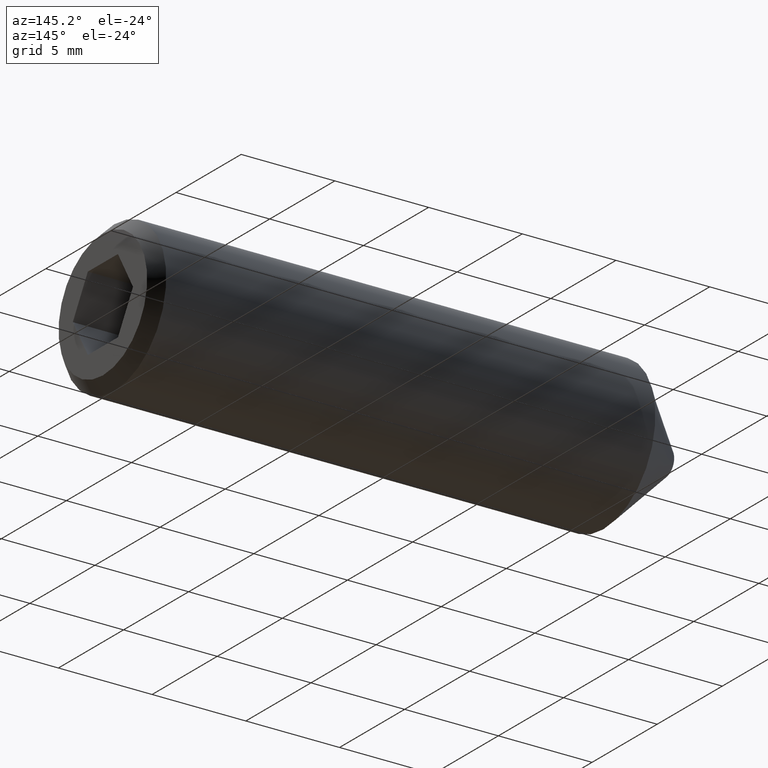
[diagram: clean part render]
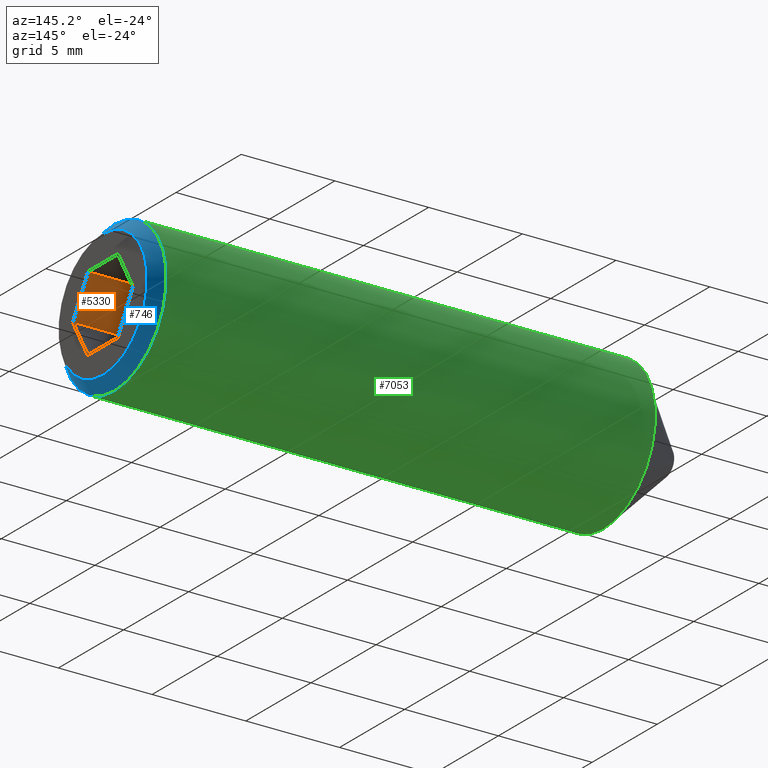
[diagram: same view with three faces highlighted in distinct colors, each labeled with its STEP entity id]
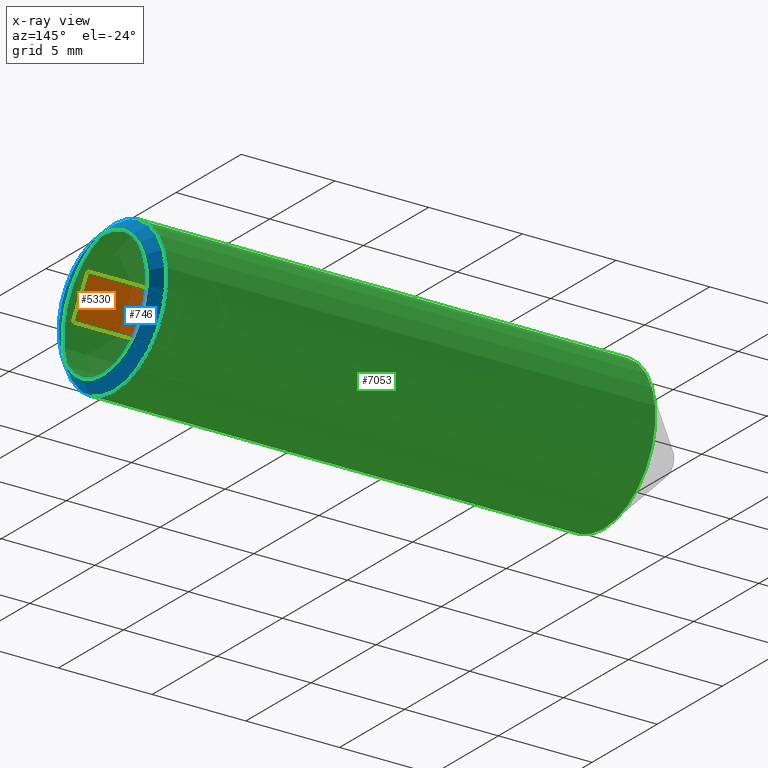
[diagram: x-ray of the same camera — body ghosted, the three highlighted faces saturated]
A machine part, auxiliary view with three faces highlighted in distinct colors.
The next image is the same camera in x-ray (body ghosted, the three faces saturated) — at least one of them is partly hidden behind the body in this view.
Their STEP definitions:

[orange] entity #5330 — the highlighted planar face has unit normal (-0, -0.866, 0.5).
#113 = DIRECTION ( 'NONE',  ( 0.0000000000000000000, -0.4999999999999999400, -0.8660254037844386000 ) ) ;
#683 = PLANE ( 'NONE',  #10505 ) ;
#1005 = CARTESIAN_POINT ( 'NONE',  ( 30.00000000000000000, -2.309401076758502900, 2.168404344971008900E-016 ) ) ;
#1140 = EDGE_CURVE ( 'NONE', #5270, #8411, #9227, .T. ) ;
#1595 = CARTESIAN_POINT ( 'NONE',  ( 30.00000000000000000, -1.154700538379251000, 2.000000000000000000 ) ) ;
#1757 = EDGE_CURVE ( 'NONE', #5270, #11010, #11707, .T. ) ;
#2015 = EDGE_LOOP ( 'NONE', ( #6199, #2749, #9116, #7396 ) ) ;
#2060 = EDGE_CURVE ( 'NONE', #8411, #6556, #2800, .T. ) ;
#2234 = DIRECTION ( 'NONE',  ( 1.000000000000000000, -0.0000000000000000000, 6.123031769111886300E-017 ) ) ;
#2547 = CARTESIAN_POINT ( 'NONE',  ( 24.99999999999999600, -1.154700538379251000, 1.999999999999999600 ) ) ;
#2626 = DIRECTION ( 'NONE',  ( 0.0000000000000000000, -0.4999999999999999400, -0.8660254037844386000 ) ) ;
#2680 = CARTESIAN_POINT ( 'NONE',  ( 24.99999999999999600, -1.154700538379251000, 1.999999999999999600 ) ) ;
#2749 = ORIENTED_EDGE ( 'NONE', *, *, #2060, .F. ) ;
#2800 = LINE ( 'NONE', #7124, #3100 ) ;
#3100 = VECTOR ( 'NONE', #2234, 1000.000000000000000 ) ;
#3444 = DIRECTION ( 'NONE',  ( 1.000000000000000000, -0.0000000000000000000, 6.123031769111886300E-017 ) ) ;
#3687 = FACE_OUTER_BOUND ( 'NONE', #2015, .T. ) ;
#4019 = VECTOR ( 'NONE', #113, 1000.000000000000100 ) ;
#5270 = VERTEX_POINT ( 'NONE', #2680 ) ;
#5330 = ADVANCED_FACE ( 'NONE', ( #3687 ), #683, .F. ) ;
#5522 = LINE ( 'NONE', #1595, #11510 ) ;
#5549 = DIRECTION ( 'NONE',  ( 0.0000000000000000000, -0.5000000000000000000, -0.8660254037844386000 ) ) ;
#5923 = EDGE_CURVE ( 'NONE', #11010, #6556, #5522, .T. ) ;
#6199 = ORIENTED_EDGE ( 'NONE', *, *, #5923, .T. ) ;
#6248 = CARTESIAN_POINT ( 'NONE',  ( 24.99999999999999600, -1.154700538379251000, 1.999999999999999600 ) ) ;
#6556 = VERTEX_POINT ( 'NONE', #1005 ) ;
#6806 = CARTESIAN_POINT ( 'NONE',  ( 30.00000000000000000, -1.154700538379251000, 2.000000000000000000 ) ) ;
#7124 = CARTESIAN_POINT ( 'NONE',  ( 24.99999999999999600, -2.309401076758502500, 1.256016596573813500E-016 ) ) ;
#7396 = ORIENTED_EDGE ( 'NONE', *, *, #1757, .T. ) ;
#7546 = VECTOR ( 'NONE', #3444, 1000.000000000000000 ) ;
#8411 = VERTEX_POINT ( 'NONE', #8743 ) ;
#8506 = DIRECTION ( 'NONE',  ( -3.061515884555943800E-017, -0.8660254037844387100, 0.5000000000000001100 ) ) ;
#8743 = CARTESIAN_POINT ( 'NONE',  ( 24.99999999999999600, -2.309401076758502500, 1.256016596573813500E-016 ) ) ;
#9116 = ORIENTED_EDGE ( 'NONE', *, *, #1140, .F. ) ;
#9227 = LINE ( 'NONE', #10917, #4019 ) ;
#10505 = AXIS2_PLACEMENT_3D ( 'NONE', #2547, #8506, #5549 ) ;
#10917 = CARTESIAN_POINT ( 'NONE',  ( 24.99999999999999600, -1.154700538379251000, 1.999999999999999600 ) ) ;
#11010 = VERTEX_POINT ( 'NONE', #6806 ) ;
#11510 = VECTOR ( 'NONE', #2626, 1000.000000000000100 ) ;
#11707 = LINE ( 'NONE', #6248, #7546 ) ;

[blue] entity #746 — the highlighted conical surface has half-angle 45 deg.
#746 = ADVANCED_FACE ( 'NONE', ( #6938, #5861 ), #4931, .T. ) ;
#930 = AXIS2_PLACEMENT_3D ( 'NONE', #9898, #7330, #3495 ) ;
#1063 = EDGE_CURVE ( 'NONE', #8314, #8314, #10482, .T. ) ;
#1110 = ORIENTED_EDGE ( 'NONE', *, *, #1063, .F. ) ;
#1218 = DIRECTION ( 'NONE',  ( 0.0000000000000000000, 0.0000000000000000000, -1.000000000000000000 ) ) ;
#2252 = DIRECTION ( 'NONE',  ( -1.000000000000000000, 0.0000000000000000000, 0.0000000000000000000 ) ) ;
#3353 = AXIS2_PLACEMENT_3D ( 'NONE', #6063, #3937, #8928 ) ;
#3495 = DIRECTION ( 'NONE',  ( 0.0000000000000000000, 0.0000000000000000000, 1.000000000000000000 ) ) ;
#3937 = DIRECTION ( 'NONE',  ( 1.000000000000000000, 0.0000000000000000000, 0.0000000000000000000 ) ) ;
#4035 = CARTESIAN_POINT ( 'NONE',  ( 30.00000000000000000, 0.0000000000000000000, -3.400000000000000800 ) ) ;
#4390 = EDGE_CURVE ( 'NONE', #10631, #10631, #7049, .T. ) ;
#4931 = CONICAL_SURFACE ( 'NONE', #930, 3.400000000000000800, 0.7853981633974450600 ) ;
#5861 = FACE_BOUND ( 'NONE', #7682, .T. ) ;
#6063 = CARTESIAN_POINT ( 'NONE',  ( 30.00000000000000000, 0.0000000000000000000, 0.0000000000000000000 ) ) ;
#6938 = FACE_OUTER_BOUND ( 'NONE', #12141, .T. ) ;
#6964 = AXIS2_PLACEMENT_3D ( 'NONE', #8126, #2252, #1218 ) ;
#7049 = CIRCLE ( 'NONE', #6964, 4.000000000000000000 ) ;
#7330 = DIRECTION ( 'NONE',  ( -1.000000000000000000, 0.0000000000000000000, 0.0000000000000000000 ) ) ;
#7682 = EDGE_LOOP ( 'NONE', ( #1110 ) ) ;
#7929 = CARTESIAN_POINT ( 'NONE',  ( 29.39999999999999500, 0.0000000000000000000, -4.000000000000000000 ) ) ;
#8126 = CARTESIAN_POINT ( 'NONE',  ( 29.39999999999999500, 0.0000000000000000000, 0.0000000000000000000 ) ) ;
#8314 = VERTEX_POINT ( 'NONE', #4035 ) ;
#8658 = ORIENTED_EDGE ( 'NONE', *, *, #4390, .F. ) ;
#8928 = DIRECTION ( 'NONE',  ( 0.0000000000000000000, 0.0000000000000000000, -1.000000000000000000 ) ) ;
#9898 = CARTESIAN_POINT ( 'NONE',  ( 30.00000000000000000, 0.0000000000000000000, 0.0000000000000000000 ) ) ;
#10482 = CIRCLE ( 'NONE', #3353, 3.400000000000000800 ) ;
#10631 = VERTEX_POINT ( 'NONE', #7929 ) ;
#12141 = EDGE_LOOP ( 'NONE', ( #8658 ) ) ;

[green] entity #7053 — the highlighted cylindrical surface (bore or boss wall) has radius 4 mm, axis along (-1, -0, -0).
#1218 = DIRECTION ( 'NONE',  ( 0.0000000000000000000, 0.0000000000000000000, -1.000000000000000000 ) ) ;
#1221 = CARTESIAN_POINT ( 'NONE',  ( 3.299999999999966100, 0.0000000000000000000, 0.0000000000000000000 ) ) ;
#2252 = DIRECTION ( 'NONE',  ( -1.000000000000000000, 0.0000000000000000000, 0.0000000000000000000 ) ) ;
#2437 = CYLINDRICAL_SURFACE ( 'NONE', #10429, 4.000000000000000000 ) ;
#3372 = AXIS2_PLACEMENT_3D ( 'NONE', #1221, #9069, #12085 ) ;
#3407 = DIRECTION ( 'NONE',  ( 0.0000000000000000000, 0.0000000000000000000, 1.000000000000000000 ) ) ;
#4390 = EDGE_CURVE ( 'NONE', #10631, #10631, #7049, .T. ) ;
#5264 = CARTESIAN_POINT ( 'NONE',  ( 30.00000000000000000, 0.0000000000000000000, 0.0000000000000000000 ) ) ;
#6152 = VERTEX_POINT ( 'NONE', #7103 ) ;
#6393 = EDGE_LOOP ( 'NONE', ( #10914 ) ) ;
#6964 = AXIS2_PLACEMENT_3D ( 'NONE', #8126, #2252, #1218 ) ;
#7049 = CIRCLE ( 'NONE', #6964, 4.000000000000000000 ) ;
#7053 = ADVANCED_FACE ( 'NONE', ( #11345, #9171 ), #2437, .T. ) ;
#7103 = CARTESIAN_POINT ( 'NONE',  ( 3.299999999999966100, 0.0000000000000000000, 4.000000000000000000 ) ) ;
#7929 = CARTESIAN_POINT ( 'NONE',  ( 29.39999999999999500, 0.0000000000000000000, -4.000000000000000000 ) ) ;
#8126 = CARTESIAN_POINT ( 'NONE',  ( 29.39999999999999500, 0.0000000000000000000, 0.0000000000000000000 ) ) ;
#8328 = ORIENTED_EDGE ( 'NONE', *, *, #8708, .F. ) ;
#8708 = EDGE_CURVE ( 'NONE', #6152, #6152, #9577, .T. ) ;
#8995 = EDGE_LOOP ( 'NONE', ( #8328 ) ) ;
#9069 = DIRECTION ( 'NONE',  ( -1.000000000000000000, -0.0000000000000000000, -0.0000000000000000000 ) ) ;
#9171 = FACE_OUTER_BOUND ( 'NONE', #8995, .T. ) ;
#9577 = CIRCLE ( 'NONE', #3372, 4.000000000000000000 ) ;
#10212 = DIRECTION ( 'NONE',  ( -1.000000000000000000, -0.0000000000000000000, -0.0000000000000000000 ) ) ;
#10429 = AXIS2_PLACEMENT_3D ( 'NONE', #5264, #10212, #3407 ) ;
#10631 = VERTEX_POINT ( 'NONE', #7929 ) ;
#10914 = ORIENTED_EDGE ( 'NONE', *, *, #4390, .T. ) ;
#11345 = FACE_OUTER_BOUND ( 'NONE', #6393, .T. ) ;
#12085 = DIRECTION ( 'NONE',  ( 0.0000000000000000000, 0.0000000000000000000, 1.000000000000000000 ) ) ;